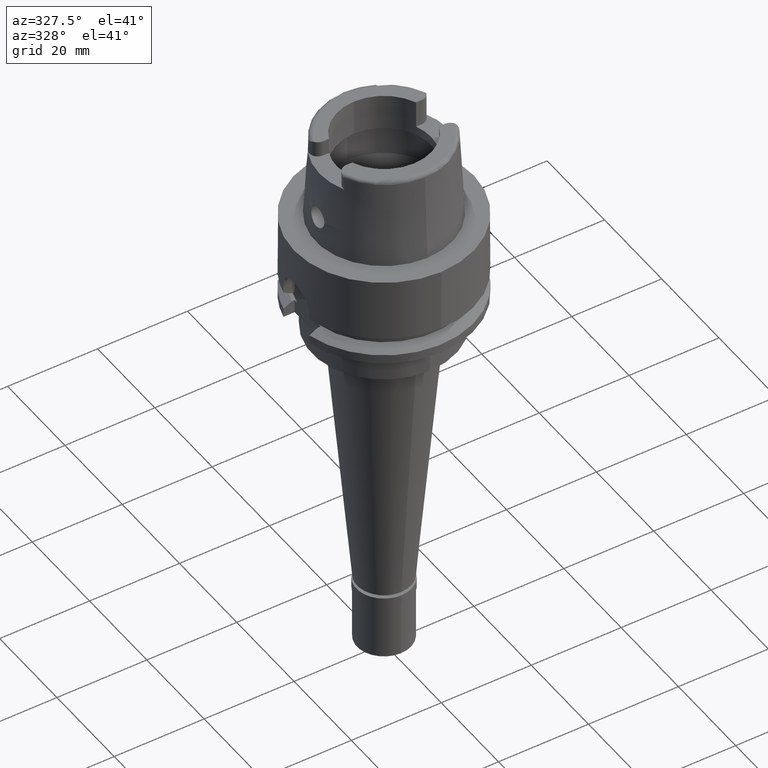
[diagram: clean part render]
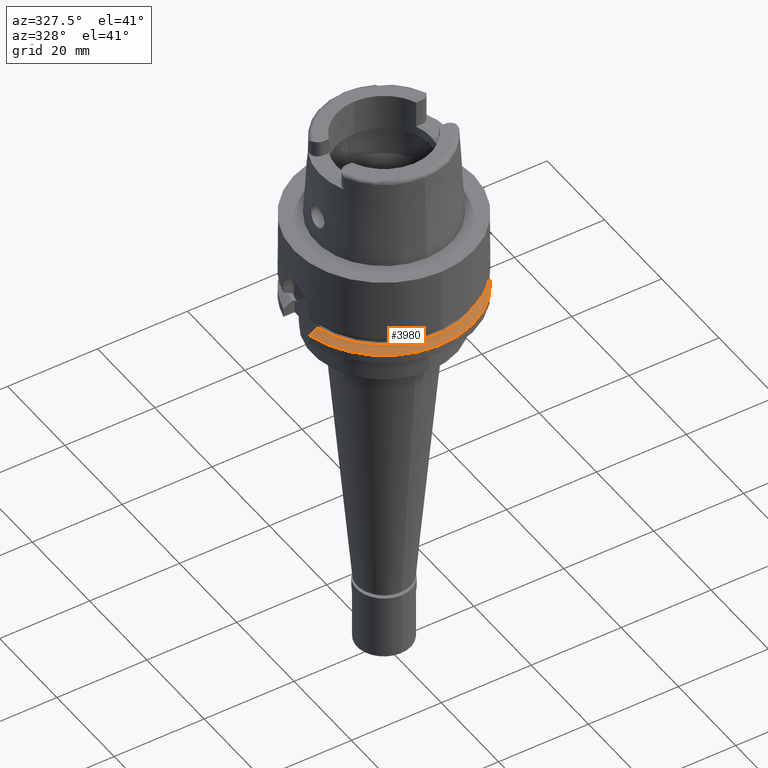
[diagram: same view with one face highlighted and labeled with its STEP entity id]
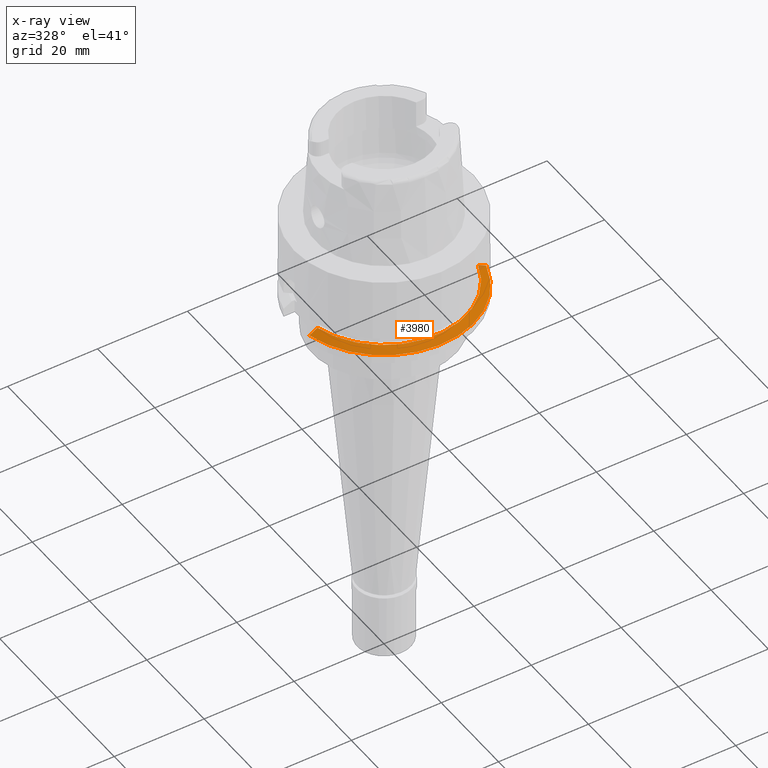
[diagram: x-ray of the same camera — body ghosted, the highlighted face saturated]
A machine part, auxiliary view. The second image highlights one B-rep face of the part: STEP entity #3980.
The next image is the same camera in x-ray: the body ghosted, the highlighted face saturated — about 1% of this face is hidden behind the body in this view.
In plain terms, the highlighted conical surface has half-angle 60 deg.
Its self-contained STEP definition (entity closure, byte-faithful):
#79 = VERTEX_POINT ( 'NONE', #3918 ) ;
#192 = DIRECTION ( 'NONE',  ( 0.0000000000000000000, -1.000000000000000000, 0.0000000000000000000 ) ) ;
#393 = CARTESIAN_POINT ( 'NONE',  ( -17.66798451012000370, -4.500000000000000000, -17.00000000000000000 ) ) ;
#493 = CIRCLE ( 'NONE', #3796, 20.00000000000000355 ) ;
#527 = DIRECTION ( 'NONE',  ( 0.0000000000000000000, 0.0000000000000000000, -1.000000000000000000 ) ) ;
#1130 = ORIENTED_EDGE ( 'NONE', *, *, #2552, .T. ) ;
#1247 = CARTESIAN_POINT ( 'NONE',  ( 17.38268324078999783, -5.500000000000000000, -17.00000000000000000 ) ) ;
#1295 = VERTEX_POINT ( 'NONE', #2598 ) ;
#1647 = CARTESIAN_POINT ( 'NONE',  ( 18.60194770749999904, -5.499999794693000155, -17.67300615736000324 ) ) ;
#1703 = CARTESIAN_POINT ( 'NONE',  ( 17.98655401451999936, -5.499999994327999353, -17.33274918987999769 ) ) ;
#1803 = FACE_OUTER_BOUND ( 'NONE', #4309, .T. ) ;
#2055 = CARTESIAN_POINT ( 'NONE',  ( -17.66798451012000370, -4.500000000000000000, -17.00000000000000000 ) ) ;
#2079 = CARTESIAN_POINT ( 'NONE',  ( -18.88138594756999922, -4.500000000000000000, -17.68013035677000033 ) ) ;
#2114 = CARTESIAN_POINT ( 'NONE',  ( 19.22888452303000051, -5.499999999998999911, -18.02072594216000212 ) ) ;
#2132 = CARTESIAN_POINT ( 'NONE',  ( -19.48717526991000071, -4.499999999998999911, -18.02072594216000212 ) ) ;
#2190 = CARTESIAN_POINT ( 'NONE',  ( 0.0000000000000000000, 1.010206699502999904E-14, -17.00000000000000000 ) ) ;
#2531 = CONICAL_SURFACE ( 'NONE', #3208, 19.11602540378000015, 1.047197551196400456 ) ;
#2552 = EDGE_CURVE ( 'NONE', #1295, #4064, #3788, .T. ) ;
#2553 = ORIENTED_EDGE ( 'NONE', *, *, #3589, .F. ) ;
#2598 = CARTESIAN_POINT ( 'NONE',  ( 17.38268324078999783, -5.500000000000000000, -17.00000000000000000 ) ) ;
#2651 = ORIENTED_EDGE ( 'NONE', *, *, #3111, .F. ) ;
#2860 = CARTESIAN_POINT ( 'NONE',  ( 19.01880106648999913, -5.500000482831000959, -17.90411482409000143 ) ) ;
#3111 = EDGE_CURVE ( 'NONE', #4128, #79, #493, .T. ) ;
#3208 = AXIS2_PLACEMENT_3D ( 'NONE', #5055, #527, #4191 ) ;
#3265 = CARTESIAN_POINT ( 'NONE',  ( -17.87038807252000083, -4.500000000000000000, -17.11324238619999960 ) ) ;
#3274 = CARTESIAN_POINT ( 'NONE',  ( 0.0000000000000000000, 1.010206699502999904E-14, -18.02072594216000212 ) ) ;
#3295 = CARTESIAN_POINT ( 'NONE',  ( -18.27500004444999959, -4.500000000000000000, -17.33986716593999944 ) ) ;
#3321 = CARTESIAN_POINT ( 'NONE',  ( 19.22888452303000051, -5.499999999998999911, -18.02072594216000212 ) ) ;
#3544 = B_SPLINE_CURVE_WITH_KNOTS ( 'NONE', 3,
 ( #2132, #3744, #2079, #3295, #3265, #2055 ),
 .UNSPECIFIED., .F., .F.,
 ( 4, 1, 1, 4 ),
 ( 0.0000000000000000000, 0.3333333333333000081, 0.6666666666667000474, 1.000000000000000000 ),
 .UNSPECIFIED. ) ;
#3589 = EDGE_CURVE ( 'NONE', #1295, #4128, #4865, .T. ) ;
#3670 = EDGE_CURVE ( 'NONE', #79, #4064, #3544, .T. ) ;
#3717 = CARTESIAN_POINT ( 'NONE',  ( 17.58287857392999598, -5.500000150105000429, -17.11019940476000301 ) ) ;
#3744 = CARTESIAN_POINT ( 'NONE',  ( -19.28530198036999721, -4.499999999998999911, -17.90716287119999706 ) ) ;
#3788 = CIRCLE ( 'NONE', #4881, 18.23205080757000118 ) ;
#3796 = AXIS2_PLACEMENT_3D ( 'NONE', #3274, #4480, #4185 ) ;
#3812 = DIRECTION ( 'NONE',  ( 0.0000000000000000000, 0.0000000000000000000, -1.000000000000000000 ) ) ;
#3918 = CARTESIAN_POINT ( 'NONE',  ( -19.48717526991000071, -4.499999999998999911, -18.02072594216000212 ) ) ;
#3980 = ADVANCED_FACE ( 'NONE', ( #1803 ), #2531, .T. ) ;
#4064 = VERTEX_POINT ( 'NONE', #393 ) ;
#4128 = VERTEX_POINT ( 'NONE', #2114 ) ;
#4185 = DIRECTION ( 'NONE',  ( 0.9614442261514726251, -0.2749999999999924727, 0.0000000000000000000 ) ) ;
#4191 = DIRECTION ( 'NONE',  ( 0.0000000000000000000, -1.000000000000000000, 0.0000000000000000000 ) ) ;
#4309 = EDGE_LOOP ( 'NONE', ( #4950, #2651, #2553, #1130 ) ) ;
#4480 = DIRECTION ( 'NONE',  ( 0.0000000000000000000, 0.0000000000000000000, -1.000000000000000000 ) ) ;
#4865 = B_SPLINE_CURVE_WITH_KNOTS ( 'NONE', 3,
 ( #1247, #3717, #1703, #1647, #2860, #3321 ),
 .UNSPECIFIED., .F., .F.,
 ( 4, 1, 1, 4 ),
 ( 0.0000000000000000000, 0.3333333333333000081, 0.6666666666667000474, 1.000000000000000000 ),
 .UNSPECIFIED. ) ;
#4881 = AXIS2_PLACEMENT_3D ( 'NONE', #2190, #3812, #192 ) ;
#4950 = ORIENTED_EDGE ( 'NONE', *, *, #3670, .F. ) ;
#5055 = CARTESIAN_POINT ( 'NONE',  ( 0.0000000000000000000, 1.010206699502999904E-14, -17.51036297107999928 ) ) ;